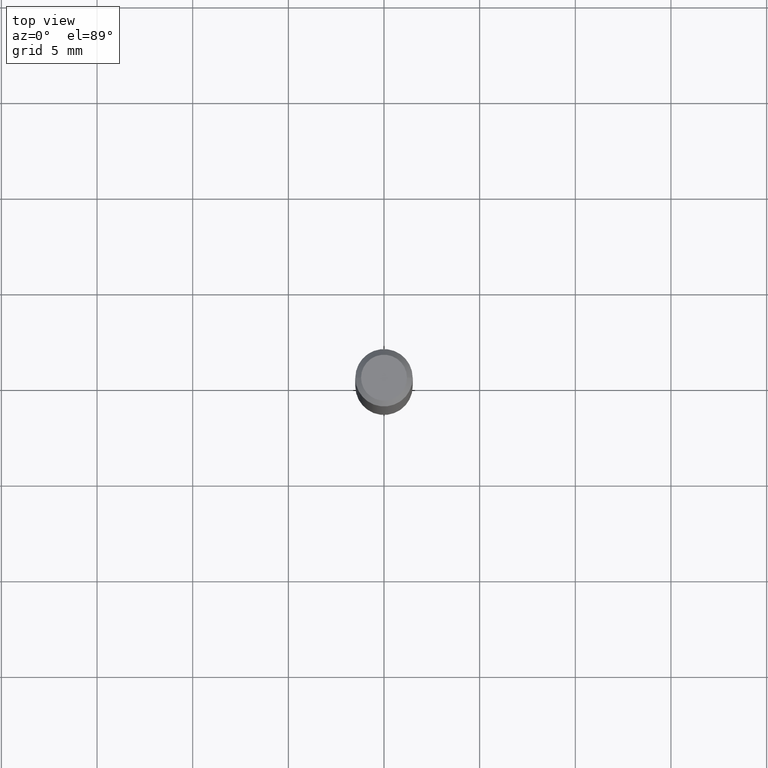
[diagram: clean part render]
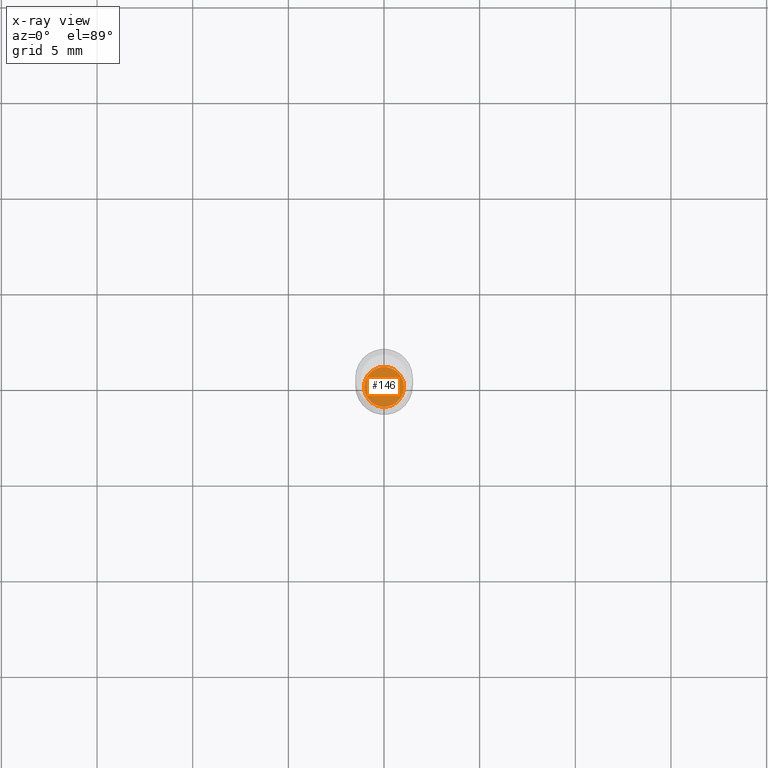
[diagram: x-ray — body ghosted, one internal face saturated and labeled with its STEP entity id]
A machine part, top view, then the same camera in x-ray: the body is ghosted and one INTERNAL B-rep face — a face not visible from any outside direction — is saturated and labeled: STEP entity #146.
In plain terms, the highlighted planar face has unit normal (-0, 0, 1).
Its self-contained STEP definition (entity closure, byte-faithful):
#3 = CARTESIAN_POINT ( 'NONE',  ( 2.676565608369631794E-29, -3.821426325363822773E-15, -1.094499999999999806 ) ) ;
#5 = AXIS2_PLACEMENT_3D ( 'NONE', #318, #328, #486 ) ;
#18 = DIRECTION ( 'NONE',  ( 1.000000000000000000, -6.982962677686270655E-15, 0.000000000000000000 ) ) ;
#21 = AXIS2_PLACEMENT_3D ( 'NONE', #3, #164, #300 ) ;
#33 = EDGE_LOOP ( 'NONE', ( #282, #230 ) ) ;
#89 = AXIS2_PLACEMENT_3D ( 'NONE', #94, #342, #18 ) ;
#94 = CARTESIAN_POINT ( 'NONE',  ( 2.676565608369631794E-29, -3.821426325363822773E-15, -1.094499999999999806 ) ) ;
#120 = CIRCLE ( 'NONE', #89, 0.04104999999999999621 ) ;
#146 = ADVANCED_FACE ( 'NONE', ( #335 ), #454, .F. ) ;
#164 = DIRECTION ( 'NONE',  ( -2.438088387897960049E-29, 3.491481338843145188E-15, 1.000000000000000000 ) ) ;
#219 = CARTESIAN_POINT ( 'NONE',  ( -0.04104999999999999621, -3.527099305160190226E-15, -1.094499999999999806 ) ) ;
#224 = EDGE_CURVE ( 'NONE', #237, #367, #120, .T. ) ;
#230 = ORIENTED_EDGE ( 'NONE', *, *, #423, .F. ) ;
#237 = VERTEX_POINT ( 'NONE', #463 ) ;
#282 = ORIENTED_EDGE ( 'NONE', *, *, #224, .F. ) ;
#300 = DIRECTION ( 'NONE',  ( 1.000000000000000000, -6.982962677686265922E-15, 4.876176775795935793E-29 ) ) ;
#318 = CARTESIAN_POINT ( 'NONE',  ( 2.676565608369631794E-29, -3.821426325363822773E-15, -1.094499999999999806 ) ) ;
#328 = DIRECTION ( 'NONE',  ( -2.445468806185136597E-29, 3.491481338843145583E-15, 1.000000000000000000 ) ) ;
#335 = FACE_OUTER_BOUND ( 'NONE', #33, .T. ) ;
#342 = DIRECTION ( 'NONE',  ( -2.445468806185136597E-29, 3.491481338843145583E-15, 1.000000000000000000 ) ) ;
#367 = VERTEX_POINT ( 'NONE', #219 ) ;
#418 = CIRCLE ( 'NONE', #5, 0.04104999999999999621 ) ;
#423 = EDGE_CURVE ( 'NONE', #367, #237, #418, .T. ) ;
#454 = PLANE ( 'NONE',  #21 ) ;
#463 = CARTESIAN_POINT ( 'NONE',  ( 0.04104999999999999621, -4.108076943282843915E-15, -1.094499999999999806 ) ) ;
#486 = DIRECTION ( 'NONE',  ( 1.000000000000000000, -6.982962677686270655E-15, 0.000000000000000000 ) ) ;